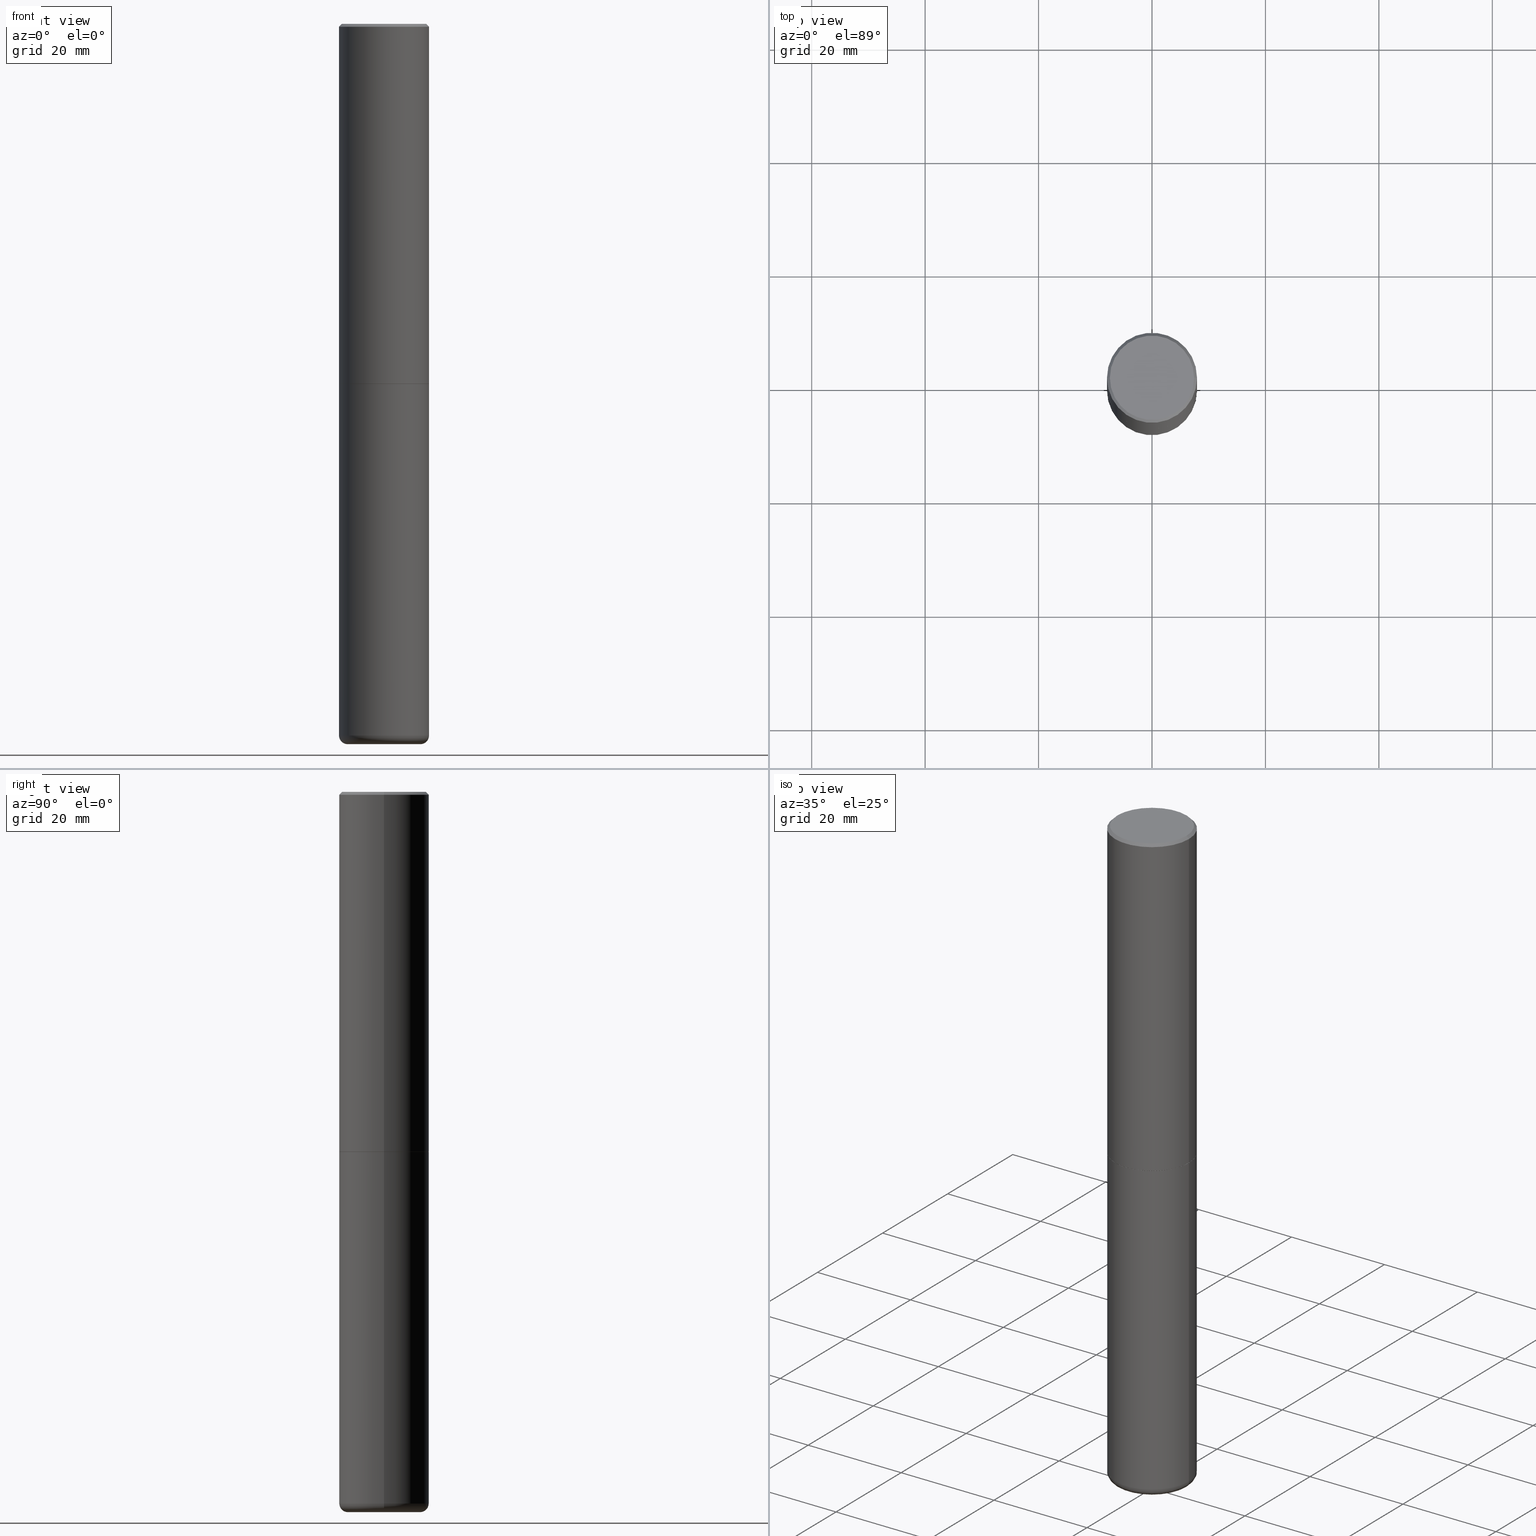
[diagram: canonical four-view strip — front | top / right | iso, engineering-drawing reading convention]
A machine part, canonical four-view strip (front | top / right | iso — engineering-drawing reading convention). The complete STEP part file that produces these views, byte-faithful:
ISO-10303-21;
HEADER;
FILE_DESCRIPTION (( 'STEP AP203' ),
    '1' );
FILE_NAME ('32687.STEP',
    '2022-04-26T19:41:17',
    ( '' ),
    ( '' ),
    'SwSTEP 2.0',
    'SolidWorks 2022',
    '' );
FILE_SCHEMA (( 'CONFIG_CONTROL_DESIGN' ));
ENDSEC;

DATA;
#1 = ADVANCED_FACE ( 'NONE', ( #19 ), #366, .T. ) ;
#2 = VECTOR ( 'NONE', #201, 39.37007874015748143 ) ;
#3 = VECTOR ( 'NONE', #187, 39.37007874015748143 ) ;
#4 = LINE ( 'NONE', #140, #78 ) ;
#5 = DIRECTION ( 'NONE',  ( -0.7071067811866199593, 7.493145998870616062E-15, 0.7071067811864750752 ) ) ;
#6 = VERTEX_POINT ( 'NONE', #79 ) ;
#7 = ADVANCED_FACE ( 'NONE', ( #93 ), #108, .T. ) ;
#8 = CARTESIAN_POINT ( 'NONE',  ( 0.000000000000000000, 0.000000000000000000, 0.000000000000000000 ) ) ;
#9 = ORIENTED_EDGE ( 'NONE', *, *, #248, .F. ) ;
#10 = LINE ( 'NONE', #184, #46 ) ;
#11 = ORIENTED_EDGE ( 'NONE', *, *, #292, .F. ) ;
#12 = CLOSED_SHELL ( 'NONE', ( #441, #128, #7, #200, #369, #60, #111, #414 ) ) ;
#13 = APPROVAL_PERSON_ORGANIZATION ( #440, #276, #285 ) ;
#14 = ORIENTED_EDGE ( 'NONE', *, *, #347, .T. ) ;
#15 = ADVANCED_BREP_SHAPE_REPRESENTATION ( '32687', ( #23, #176, #379 ), #430 ) ;
#16 =( NAMED_UNIT ( * ) PLANE_ANGLE_UNIT ( ) SI_UNIT ( $, .RADIAN. ) );
#17 = VERTEX_POINT ( 'NONE', #59 ) ;
#18 = DIRECTION ( 'NONE',  ( -2.445468806185136597E-29, 3.491481338843145583E-15, 1.000000000000000000 ) ) ;
#19 = FACE_OUTER_BOUND ( 'NONE', #386, .T. ) ;
#20 = CARTESIAN_POINT ( 'NONE',  ( 1.084948876691022629E-27, -1.549019454668422527E-13, -44.36568047594573727 ) ) ;
#21 = ORGANIZATION ( 'UNSPECIFIED', 'UNSPECIFIED', '' ) ;
#22 = CARTESIAN_POINT ( 'NONE',  ( 6.111226546656659252E-29, -8.725211865769023513E-15, -2.499000000000000998 ) ) ;
#23 = MANIFOLD_SOLID_BREP ( 'Body-Move/Copy2[1]', #125 ) ;
#24 = CARTESIAN_POINT ( 'NONE',  ( -1.043851414335219820E-46, 1.490343170380447200E-32, 4.268512490100411279E-18 ) ) ;
#25 = APPLICATION_PROTOCOL_DEFINITION ( 'international standard', 'config_control_design', 1994, #236 ) ;
#26 = ORIENTED_EDGE ( 'NONE', *, *, #382, .F. ) ;
#27 = CARTESIAN_POINT ( 'NONE',  ( 1.208061590255457595E-28, -1.724791781388513999E-14, -4.940000000000000391 ) ) ;
#28 = EDGE_CURVE ( 'NONE', #259, #157, #164, .T. ) ;
#29 = AXIS2_PLACEMENT_3D ( 'NONE', #329, #58, #95 ) ;
#30 = CARTESIAN_POINT ( 'NONE',  ( 6.113672015462842613E-29, -8.728703347107866520E-15, -2.500000000000000444 ) ) ;
#31 = AXIS2_PLACEMENT_3D ( 'NONE', #418, #356, #225 ) ;
#32 = ADVANCED_FACE ( 'NONE', ( #431 ), #373, .F. ) ;
#33 = DIMENSIONAL_EXPONENTS ( 1.000000000000000000, 0.000000000000000000, 0.000000000000000000, 0.000000000000000000, 0.000000000000000000, 0.000000000000000000, 0.000000000000000000 ) ;
#34 = PERSON_AND_ORGANIZATION ( #331, #21 ) ;
#35 = CARTESIAN_POINT ( 'NONE',  ( 0.000000000000000000, 0.000000000000000000, 0.000000000000000000 ) ) ;
#36 = DESIGN_CONTEXT ( 'detailed design', #174, 'design' ) ;
#37 = VECTOR ( 'NONE', #413, 39.37007874015748143 ) ;
#38 = FACE_OUTER_BOUND ( 'NONE', #417, .T. ) ;
#39 = ORIENTED_EDGE ( 'NONE', *, *, #67, .T. ) ;
#40 = DIRECTION ( 'NONE',  ( -2.445468806185136877E-29, 3.491481338843145188E-15, 1.000000000000000000 ) ) ;
#41 = CC_DESIGN_DATE_AND_TIME_ASSIGNMENT ( #243, #371, ( #105 ) ) ;
#42 = ORIENTED_EDGE ( 'NONE', *, *, #28, .F. ) ;
#43 = DIRECTION ( 'NONE',  ( -2.445468806185136597E-29, 3.491481338843145583E-15, 1.000000000000000000 ) ) ;
#44 = EDGE_CURVE ( 'NONE', #424, #6, #412, .T. ) ;
#45 = ORIENTED_EDGE ( 'NONE', *, *, #156, .F. ) ;
#46 = VECTOR ( 'NONE', #75, 39.37007874015748854 ) ;
#47 = APPROVAL ( #138, 'UNSPECIFIED' ) ;
#48 = CARTESIAN_POINT ( 'NONE',  ( 2.042516583223230567E-15, 0.2924999999999997047, -1.019124035366569015E-15 ) ) ;
#49 = EDGE_LOOP ( 'NONE', ( #190, #14, #340, #256 ) ) ;
#50 = DIRECTION ( 'NONE',  ( 2.438088387897960049E-29, -3.491481338843145188E-15, -1.000000000000000000 ) ) ;
#51 = CARTESIAN_POINT ( 'NONE',  ( -0.3125000000000000000, -1.076786453124619412E-14, -2.500000000000000000 ) ) ;
#52 = AXIS2_PLACEMENT_3D ( 'NONE', #210, #68, #342 ) ;
#53 = DIRECTION ( 'NONE',  ( 1.000000000000000000, -6.982962677686269077E-15, 0.000000000000000000 ) ) ;
#54 = VERTEX_POINT ( 'NONE', #51 ) ;
#55 = DIRECTION ( 'NONE',  ( 1.000000000000000000, -6.982962677686266711E-15, 4.876067333457694521E-29 ) ) ;
#56 = DIRECTION ( 'NONE',  ( -2.445468806185136597E-29, 3.491481338843145583E-15, 1.000000000000000000 ) ) ;
#57 = DIRECTION ( 'NONE',  ( 2.445468806185136597E-29, -3.491481338843145583E-15, -1.000000000000000000 ) ) ;
#58 = DIRECTION ( 'NONE',  ( -2.445468806185136597E-29, 3.491481338843145583E-15, 1.000000000000000000 ) ) ;
#59 = CARTESIAN_POINT ( 'NONE',  ( 0.3125000000000000000, -1.091087918388482329E-14, -2.500000000000000000 ) ) ;
#60 = ADVANCED_FACE ( 'NONE', ( #433 ), #204, .T. ) ;
#61 = DIRECTION ( 'NONE',  ( -2.445468806185136597E-29, 3.491481338843145583E-15, 1.000000000000000000 ) ) ;
#62 = CONICAL_SURFACE ( 'NONE', #116, 0.3124999999999997224, 0.7853981633974471688 ) ;
#63 = PERSON_AND_ORGANIZATION_ROLE ( 'creator' ) ;
#64 = AXIS2_PLACEMENT_3D ( 'NONE', #202, #56, #53 ) ;
#65 = ORIENTED_EDGE ( 'NONE', *, *, #196, .T. ) ;
#66 = CARTESIAN_POINT ( 'NONE',  ( 4.890937612370290675E-31, -6.982962677686316261E-17, -0.02000000000000007327 ) ) ;
#67 = EDGE_CURVE ( 'NONE', #394, #73, #320, .T. ) ;
#68 = DIRECTION ( 'NONE',  ( -2.445468806185136597E-29, 3.491481338843145583E-15, 1.000000000000000000 ) ) ;
#69 = DIRECTION ( 'NONE',  ( 1.000000000000000000, -6.982962677686269077E-15, 0.000000000000000000 ) ) ;
#70 = APPROVAL_DATE_TIME ( #315, #276 ) ;
#71 = CIRCLE ( 'NONE', #31, 0.3124999999999994449 ) ;
#72 = APPROVAL ( #162, 'UNSPECIFIED' ) ;
#73 = VERTEX_POINT ( 'NONE', #435 ) ;
#74 = EDGE_CURVE ( 'NONE', #197, #394, #406, .T. ) ;
#75 = DIRECTION ( 'NONE',  ( 0.9998476951563914916, -6.920387862090549257E-15, -0.01745240643727338434 ) ) ;
#76 = ADVANCED_FACE ( 'NONE', ( #161 ), #387, .T. ) ;
#77 = AXIS2_PLACEMENT_3D ( 'NONE', #22, #167, #309 ) ;
#78 = VECTOR ( 'NONE', #5, 39.37007874015748143 ) ;
#79 = CARTESIAN_POINT ( 'NONE',  ( -0.3125000000000000000, -2.177074697022629142E-15, -2.499000000000000998 ) ) ;
#80 = DIRECTION ( 'NONE',  ( 0.000000000000000000, 0.000000000000000000, 1.000000000000000000 ) ) ;
#81 = ORIENTED_EDGE ( 'NONE', *, *, #410, .T. ) ;
#82 = AXIS2_PLACEMENT_3D ( 'NONE', #368, #57, #244 ) ;
#83 = AXIS2_PLACEMENT_3D ( 'NONE', #284, #103, #180 ) ;
#84 = CARTESIAN_POINT ( 'NONE',  ( -0.3124999999999997224, 2.112346210000093471E-15, -0.02000000000000007327 ) ) ;
#85 = PERSON_AND_ORGANIZATION ( #331, #21 ) ;
#86 = ORIENTED_EDGE ( 'NONE', *, *, #410, .F. ) ;
#87 = DIRECTION ( 'NONE',  ( -2.445468806185136597E-29, 3.491481338843145583E-15, 1.000000000000000000 ) ) ;
#88 =( CONVERSION_BASED_UNIT ( 'INCH', #376 ) LENGTH_UNIT ( ) NAMED_UNIT ( #33 ) );
#89 = ADVANCED_FACE ( 'NONE', ( #123 ), #396, .F. ) ;
#90 = ORIENTED_EDGE ( 'NONE', *, *, #307, .T. ) ;
#91 = CARTESIAN_POINT ( 'NONE',  ( 1.208061590255457595E-28, -1.724791781388513999E-14, -4.940000000000000391 ) ) ;
#92 = CALENDAR_DATE ( 2022, 26, 4 ) ;
#93 = FACE_OUTER_BOUND ( 'NONE', #114, .T. ) ;
#94 = EDGE_CURVE ( 'NONE', #6, #424, #220, .T. ) ;
#95 = DIRECTION ( 'NONE',  ( 1.000000000000000000, -6.982962677686266711E-15, 4.876176775795935232E-29 ) ) ;
#96 = AXIS2_PLACEMENT_3D ( 'NONE', #328, #392, #124 ) ;
#97 = COORDINATED_UNIVERSAL_TIME_OFFSET ( 5, 0, .BEHIND. ) ;
#98 = AXIS2_PLACEMENT_3D ( 'NONE', #8, #293, #223 ) ;
#99 = LINE ( 'NONE', #265, #282 ) ;
#100 = PERSON_AND_ORGANIZATION_ROLE ( 'classification_officer' ) ;
#101 = AXIS2_PLACEMENT_3D ( 'NONE', #336, #263, #130 ) ;
#102 = LINE ( 'NONE', #381, #3 ) ;
#103 = DIRECTION ( 'NONE',  ( -2.445468806185136597E-29, 3.491481338843145583E-15, 1.000000000000000000 ) ) ;
#104 = ORIENTED_EDGE ( 'NONE', *, *, #393, .T. ) ;
#105 = PRODUCT_DEFINITION ( 'UNKNOWN', '', #181, #36 ) ;
#106 = CARTESIAN_POINT ( 'NONE',  ( 6.113672015462842613E-29, -8.728703347107864943E-15, -2.500000000000000000 ) ) ;
#107 = CIRCLE ( 'NONE', #360, 0.3124999999999997224 ) ;
#108 = CONICAL_SURFACE ( 'NONE', #82, 0.3124999999999997224, 0.7853981633974471688 ) ;
#109 = ORIENTED_EDGE ( 'NONE', *, *, #333, .F. ) ;
#110 = CIRCLE ( 'NONE', #213, 0.3125000000000000000 ) ;
#111 = ADVANCED_FACE ( 'NONE', ( #134 ), #299, .F. ) ;
#112 = EDGE_LOOP ( 'NONE', ( #294, #301, #188, #427 ) ) ;
#113 = FACE_OUTER_BOUND ( 'NONE', #150, .T. ) ;
#114 = EDGE_LOOP ( 'NONE', ( #11, #425, #104, #26 ) ) ;
#115 = VERTEX_POINT ( 'NONE', #395 ) ;
#116 = AXIS2_PLACEMENT_3D ( 'NONE', #338, #375, #237 ) ;
#117 = CONICAL_SURFACE ( 'NONE', #149, 2255.510300424909019, 1.553343034274963452 ) ;
#118 = PLANE ( 'NONE',  #194 ) ;
#119 = CARTESIAN_POINT ( 'NONE',  ( 0.2525000000000000022, -1.901111589000092328E-14, -4.940000000000000391 ) ) ;
#120 = FACE_OUTER_BOUND ( 'NONE', #151, .T. ) ;
#121 = ORIENTED_EDGE ( 'NONE', *, *, #292, .T. ) ;
#122 = EDGE_CURVE ( 'NONE', #199, #115, #107, .T. ) ;
#123 = FACE_OUTER_BOUND ( 'NONE', #391, .T. ) ;
#124 = DIRECTION ( 'NONE',  ( 1.000000000000000000, -6.982962677686266711E-15, 4.876176775795936353E-29 ) ) ;
#125 = CLOSED_SHELL ( 'NONE', ( #420, #310, #89, #318, #76, #1, #32 ) ) ;
#126 = AXIS2_PLACEMENT_3D ( 'NONE', #325, #153, #295 ) ;
#127 = DIRECTION ( 'NONE',  ( 0.7071067811866199593, -2.468850131083015945E-15, 0.7071067811864750752 ) ) ;
#128 = ADVANCED_FACE ( 'NONE', ( #404 ), #242, .T. ) ;
#129 = CALENDAR_DATE ( 2022, 26, 4 ) ;
#130 = DIRECTION ( 'NONE',  ( -1.000000000000000000, 6.982962677686265922E-15, -4.876176775795935793E-29 ) ) ;
#131 = LINE ( 'NONE', #168, #260 ) ;
#132 = CC_DESIGN_PERSON_AND_ORGANIZATION_ASSIGNMENT ( #361, #383, ( #181 ) ) ;
#133 = CARTESIAN_POINT ( 'NONE',  ( 6.113672015462842613E-29, -8.728703347107866520E-15, -2.500000000000000444 ) ) ;
#134 = FACE_OUTER_BOUND ( 'NONE', #298, .T. ) ;
#135 = PERSON_AND_ORGANIZATION ( #331, #21 ) ;
#136 = DIRECTION ( 'NONE',  ( 7.105427357601001859E-15, 1.000000000000000000, -3.491481338843145583E-15 ) ) ;
#137 = CARTESIAN_POINT ( 'NONE',  ( 1.222732168352103738E-28, -1.745737478804456827E-14, -4.999990861709382450 ) ) ;
#138 = APPROVAL_STATUS ( 'not_yet_approved' ) ;
#139 = COORDINATED_UNIVERSAL_TIME_OFFSET ( 5, 0, .BEHIND. ) ;
#140 = CARTESIAN_POINT ( 'NONE',  ( -0.3114999999999999991, -6.515362725215153659E-15, -2.500000000000000444 ) ) ;
#141 = PRODUCT_DEFINITION_SHAPE ( 'NONE', 'NONE',  #105 ) ;
#142 = EDGE_CURVE ( 'NONE', #419, #115, #334, .T. ) ;
#143 = AXIS2_PLACEMENT_3D ( 'NONE', #91, #278, #312 ) ;
#144 = CARTESIAN_POINT ( 'NONE',  ( 0.2514528556137621829, -1.918246660051672056E-14, -4.999990861709382450 ) ) ;
#145 = AXIS2_PLACEMENT_3D ( 'NONE', #35, #281, #411 ) ;
#146 = CC_DESIGN_PERSON_AND_ORGANIZATION_ASSIGNMENT ( #219, #100, ( #407 ) ) ;
#147 = ORIENTED_EDGE ( 'NONE', *, *, #217, .F. ) ;
#148 = AXIS2_PLACEMENT_3D ( 'NONE', #20, #273, #158 ) ;
#149 = AXIS2_PLACEMENT_3D ( 'NONE', #378, #177, #416 ) ;
#150 = EDGE_LOOP ( 'NONE', ( #207, #121 ) ) ;
#151 = EDGE_LOOP ( 'NONE', ( #152, #183, #291, #186 ) ) ;
#152 = ORIENTED_EDGE ( 'NONE', *, *, #175, .T. ) ;
#153 = DIRECTION ( 'NONE',  ( -2.445468806185136597E-29, 3.491481338843145583E-15, 1.000000000000000000 ) ) ;
#154 = EDGE_LOOP ( 'NONE', ( #398, #163, #357, #86 ) ) ;
#155 = AXIS2_PLACEMENT_3D ( 'NONE', #290, #43, #322 ) ;
#156 = EDGE_CURVE ( 'NONE', #73, #54, #99, .T. ) ;
#157 = VERTEX_POINT ( 'NONE', #436 ) ;
#158 = DIRECTION ( 'NONE',  ( -1.000000000000000000, 6.982962677686266711E-15, 0.000000000000000000 ) ) ;
#159 = EDGE_LOOP ( 'NONE', ( #65, #224 ) ) ;
#160 = EDGE_CURVE ( 'NONE', #400, #424, #370, .T. ) ;
#161 = FACE_OUTER_BOUND ( 'NONE', #154, .T. ) ;
#162 = APPROVAL_STATUS ( 'not_yet_approved' ) ;
#163 = ORIENTED_EDGE ( 'NONE', *, *, #248, .T. ) ;
#164 = CIRCLE ( 'NONE', #179, 0.05999999999999946348 ) ;
#165 = TOROIDAL_SURFACE ( 'NONE', #83, 0.2525000000000000022, 0.05999999999999949818 ) ;
#166 = CARTESIAN_POINT ( 'NONE',  ( 0.3124999999999997224, -2.213735251080464939E-15, -0.02000000000000007327 ) ) ;
#167 = DIRECTION ( 'NONE',  ( -2.445468806185136597E-29, 3.491481338843145583E-15, 1.000000000000000000 ) ) ;
#168 = CARTESIAN_POINT ( 'NONE',  ( -0.3124999999999998890, 2.220446049250312292E-15, -1.537167215704657391E-29 ) ) ;
#169 = CARTESIAN_POINT ( 'NONE',  ( 1.221658821299451563E-28, -1.744205023679714214E-14, -4.995601735788261166 ) ) ;
#170 = DIRECTION ( 'NONE',  ( -0.9998476951563914916, 6.920964387254070988E-15, -0.01745240643727338434 ) ) ;
#171 = APPLICATION_PROTOCOL_DEFINITION ( 'international standard', 'config_control_design', 1994, #174 ) ;
#172 = VECTOR ( 'NONE', #127, 39.37007874015748143 ) ;
#173 = DIRECTION ( 'NONE',  ( -2.445468806185136597E-29, 3.491481338843145583E-15, 1.000000000000000000 ) ) ;
#174 = APPLICATION_CONTEXT ( 'configuration controlled 3d designs of mechanical parts and assemblies' ) ;
#175 = EDGE_CURVE ( 'NONE', #157, #73, #335, .T. ) ;
#176 = MANIFOLD_SOLID_BREP ( 'Body-Move/Copy2[2]', #12 ) ;
#177 = DIRECTION ( 'NONE',  ( 2.445468806185136597E-29, -3.491481338843145583E-15, -1.000000000000000000 ) ) ;
#178 = PERSON_AND_ORGANIZATION_ROLE ( 'design_supplier' ) ;
#179 = AXIS2_PLACEMENT_3D ( 'NONE', #119, #267, #359 ) ;
#180 = DIRECTION ( 'NONE',  ( 1.000000000000000000, -6.982962677686268288E-15, 4.883557194083113462E-29 ) ) ;
#181 = PRODUCT_DEFINITION_FORMATION_WITH_SPECIFIED_SOURCE ( 'ANY', '', #279, .NOT_KNOWN. ) ;
#182 = CARTESIAN_POINT ( 'NONE',  ( -1.043851414335219820E-46, 1.490343170380447200E-32, 4.268512490100411279E-18 ) ) ;
#183 = ORIENTED_EDGE ( 'NONE', *, *, #156, .T. ) ;
#184 = CARTESIAN_POINT ( 'NONE',  ( 1.221658821299451563E-28, -1.744205023679714214E-14, -4.995601735788261166 ) ) ;
#185 = AXIS2_PLACEMENT_3D ( 'NONE', #311, #136, #275 ) ;
#186 = ORIENTED_EDGE ( 'NONE', *, *, #307, .F. ) ;
#187 = DIRECTION ( 'NONE',  ( -0.7071067811865466846, 2.468850131082247989E-15, -0.7071067811865483499 ) ) ;
#188 = ORIENTED_EDGE ( 'NONE', *, *, #215, .T. ) ;
#189 = CARTESIAN_POINT ( 'NONE',  ( 0.3125000000000000000, -1.090738770254598186E-14, -2.499000000000000998 ) ) ;
#190 = ORIENTED_EDGE ( 'NONE', *, *, #287, .F. ) ;
#191 = PRODUCT_RELATED_PRODUCT_CATEGORY ( 'detail', '', ( #279 ) ) ;
#192 = DIRECTION ( 'NONE',  ( -2.445468806185136597E-29, 3.491481338843145583E-15, 1.000000000000000000 ) ) ;
#193 = AXIS2_PLACEMENT_3D ( 'NONE', #27, #401, #434 ) ;
#194 = AXIS2_PLACEMENT_3D ( 'NONE', #48, #50, #258 ) ;
#195 =( LENGTH_UNIT ( ) NAMED_UNIT ( * ) SI_UNIT ( $, .METRE. ) );
#196 = EDGE_CURVE ( 'NONE', #17, #54, #390, .T. ) ;
#197 = VERTEX_POINT ( 'NONE', #367 ) ;
#198 = DIRECTION ( 'NONE',  ( -2.445468806185136597E-29, 3.491481338843145583E-15, 1.000000000000000000 ) ) ;
#199 = VERTEX_POINT ( 'NONE', #84 ) ;
#200 = ADVANCED_FACE ( 'NONE', ( #205 ), #62, .T. ) ;
#201 = DIRECTION ( 'NONE',  ( 0.7071067811865466846, -7.319954787623252890E-15, -0.7071067811865483499 ) ) ;
#202 = CARTESIAN_POINT ( 'NONE',  ( 6.113672015462842613E-29, -8.728703347107866520E-15, -2.500000000000000444 ) ) ;
#203 = ORIENTED_EDGE ( 'NONE', *, *, #384, .T. ) ;
#204 = CONICAL_SURFACE ( 'NONE', #421, 0.3114999999999999991, 0.7853981633975507526 ) ;
#205 = FACE_OUTER_BOUND ( 'NONE', #332, .T. ) ;
#206 = APPROVAL_ROLE ( '' ) ;
#207 = ORIENTED_EDGE ( 'NONE', *, *, #231, .T. ) ;
#208 = LINE ( 'NONE', #268, #372 ) ;
#209 = CALENDAR_DATE ( 2022, 26, 4 ) ;
#210 = CARTESIAN_POINT ( 'NONE',  ( 6.113672015462842613E-29, -8.728703347107866520E-15, -2.500000000000000444 ) ) ;
#211 = DIRECTION ( 'NONE',  ( 1.000000000000000000, -6.982962677686265133E-15, 0.000000000000000000 ) ) ;
#212 = AXIS2_PLACEMENT_3D ( 'NONE', #240, #61, #408 ) ;
#213 = AXIS2_PLACEMENT_3D ( 'NONE', #106, #254, #211 ) ;
#214 = CARTESIAN_POINT ( 'NONE',  ( -0.3114999999999999991, -6.510064270866932046E-15, -2.500000000000000444 ) ) ;
#215 = EDGE_CURVE ( 'NONE', #424, #115, #208, .T. ) ;
#216 = UNCERTAINTY_MEASURE_WITH_UNIT (LENGTH_MEASURE( 1.000000000000000082E-05 ), #88, 'distance_accuracy_value', 'NONE');
#217 = EDGE_CURVE ( 'NONE', #400, #350, #266, .T. ) ;
#218 = APPROVAL_STATUS ( 'not_yet_approved' ) ;
#219 = PERSON_AND_ORGANIZATION ( #331, #21 ) ;
#220 = CIRCLE ( 'NONE', #227, 0.3125000000000000000 ) ;
#221 = LOCAL_TIME ( 15, 41, 17.00000000000000000, #139 ) ;
#222 = ORIENTED_EDGE ( 'NONE', *, *, #287, .T. ) ;
#223 = DIRECTION ( 'NONE',  ( 1.000000000000000000, -6.982962677686266711E-15, 4.876176775795936353E-29 ) ) ;
#224 = ORIENTED_EDGE ( 'NONE', *, *, #333, .T. ) ;
#225 = DIRECTION ( 'NONE',  ( 1.000000000000000000, -6.982962677686269077E-15, 0.000000000000000000 ) ) ;
#226 = CYLINDRICAL_SURFACE ( 'NONE', #98, 0.3124999999999997224 ) ;
#227 = AXIS2_PLACEMENT_3D ( 'NONE', #341, #87, #399 ) ;
#228 = CIRCLE ( 'NONE', #126, 0.2514528556137634596 ) ;
#229 = VERTEX_POINT ( 'NONE', #306 ) ;
#230 = ORIENTED_EDGE ( 'NONE', *, *, #429, .F. ) ;
#231 = EDGE_CURVE ( 'NONE', #229, #419, #354, .T. ) ;
#232 = ORIENTED_EDGE ( 'NONE', *, *, #393, .F. ) ;
#233 = DATE_AND_TIME ( #92, #305 ) ;
#234 = EDGE_LOOP ( 'NONE', ( #297, #286, #232, #262 ) ) ;
#235 = CIRCLE ( 'NONE', #388, 0.2514528556137634596 ) ;
#236 = APPLICATION_CONTEXT ( 'configuration controlled 3d designs of mechanical parts and assemblies' ) ;
#237 = DIRECTION ( 'NONE',  ( -1.000000000000000000, 6.982962677686266711E-15, 0.000000000000000000 ) ) ;
#238 = APPROVAL_ROLE ( '' ) ;
#239 = ORIENTED_EDGE ( 'NONE', *, *, #384, .F. ) ;
#240 = CARTESIAN_POINT ( 'NONE',  ( 6.113672015462842613E-29, -8.728703347107864943E-15, -2.500000000000000000 ) ) ;
#241 = EDGE_LOOP ( 'NONE', ( #326, #222, #272, #355 ) ) ;
#242 = CYLINDRICAL_SURFACE ( 'NONE', #29, 0.3124999999999998890 ) ;
#243 = DATE_AND_TIME ( #129, #374 ) ;
#244 = DIRECTION ( 'NONE',  ( -1.000000000000000000, 6.982962677686266711E-15, 0.000000000000000000 ) ) ;
#245 = CIRCLE ( 'NONE', #362, 0.2924999999999997047 ) ;
#246 = CARTESIAN_POINT ( 'NONE',  ( 6.113672015462842613E-29, -8.728703347107864943E-15, -2.500000000000000000 ) ) ;
#247 = DIRECTION ( 'NONE',  ( -2.445468806185136877E-29, 3.491481338843145188E-15, 1.000000000000000000 ) ) ;
#248 = EDGE_CURVE ( 'NONE', #394, #259, #235, .T. ) ;
#249 = CARTESIAN_POINT ( 'NONE',  ( 0.3124999999999997224, -2.182175836776956375E-15, 1.523805242436228674E-29 ) ) ;
#250 = APPROVAL_PERSON_ORGANIZATION ( #135, #72, #238 ) ;
#251 = CYLINDRICAL_SURFACE ( 'NONE', #145, 0.3124999999999998890 ) ;
#252 = DATE_AND_TIME ( #280, #221 ) ;
#253 = ORIENTED_EDGE ( 'NONE', *, *, #347, .F. ) ;
#254 = DIRECTION ( 'NONE',  ( -2.445468806185136597E-29, 3.491481338843145583E-15, 1.000000000000000000 ) ) ;
#255 = CC_DESIGN_SECURITY_CLASSIFICATION ( #407, ( #181 ) ) ;
#256 = ORIENTED_EDGE ( 'NONE', *, *, #94, .F. ) ;
#257 = EDGE_CURVE ( 'NONE', #6, #199, #131, .T. ) ;
#258 = DIRECTION ( 'NONE',  ( -1.000000000000000000, 6.982962677686265922E-15, -4.876176775795935793E-29 ) ) ;
#259 = VERTEX_POINT ( 'NONE', #144 ) ;
#260 = VECTOR ( 'NONE', #40, 39.37007874015748143 ) ;
#261 = CC_DESIGN_PERSON_AND_ORGANIZATION_ASSIGNMENT ( #34, #178, ( #181 ) ) ;
#262 = ORIENTED_EDGE ( 'NONE', *, *, #215, .F. ) ;
#263 = DIRECTION ( 'NONE',  ( 2.438088387897960049E-29, -3.491481338843145188E-15, -1.000000000000000000 ) ) ;
#264 = ORIENTED_EDGE ( 'NONE', *, *, #231, .F. ) ;
#265 = CARTESIAN_POINT ( 'NONE',  ( -0.3124999999999997224, 2.220446049250311109E-15, -1.537167215704656831E-29 ) ) ;
#266 = CIRCLE ( 'NONE', #52, 0.3114999999999999991 ) ;
#267 = DIRECTION ( 'NONE',  ( -6.982962677686266711E-15, -1.000000000000000000, 3.491481338843145583E-15 ) ) ;
#268 = CARTESIAN_POINT ( 'NONE',  ( 0.3124999999999998890, -2.182175836776957558E-15, 1.523805242436229235E-29 ) ) ;
#269 = ORIENTED_EDGE ( 'NONE', *, *, #74, .F. ) ;
#270 = CARTESIAN_POINT ( 'NONE',  ( 0.3114999999999999991, -1.090389622120713885E-14, -2.500000000000000444 ) ) ;
#271 = MECHANICAL_CONTEXT ( 'NONE', #236, 'mechanical' ) ;
#272 = ORIENTED_EDGE ( 'NONE', *, *, #44, .F. ) ;
#273 = DIRECTION ( 'NONE',  ( 2.445468806185136597E-29, -3.491481338843145583E-15, -1.000000000000000000 ) ) ;
#274 = APPROVAL_DATE_TIME ( #233, #72 ) ;
#275 = DIRECTION ( 'NONE',  ( -1.000000000000000000, 7.105427357601022369E-15, 0.000000000000000000 ) ) ;
#276 = APPROVAL ( #218, 'UNSPECIFIED' ) ;
#277 = LOCAL_TIME ( 15, 41, 17.00000000000000000, #348 ) ;
#278 = DIRECTION ( 'NONE',  ( -2.445468806185136597E-29, 3.491481338843145583E-15, 1.000000000000000000 ) ) ;
#279 = PRODUCT ( '32687', '32687', '', ( #271 ) ) ;
#280 = CALENDAR_DATE ( 2022, 26, 4 ) ;
#281 = DIRECTION ( 'NONE',  ( -2.445468806185136597E-29, 3.491481338843145583E-15, 1.000000000000000000 ) ) ;
#282 = VECTOR ( 'NONE', #247, 39.37007874015748143 ) ;
#283 = CIRCLE ( 'NONE', #288, 0.3114999999999999991 ) ;
#284 = CARTESIAN_POINT ( 'NONE',  ( 1.208061590255457595E-28, -1.724791781388513999E-14, -4.940000000000000391 ) ) ;
#285 = APPROVAL_ROLE ( '' ) ;
#286 = ORIENTED_EDGE ( 'NONE', *, *, #257, .T. ) ;
#287 = EDGE_CURVE ( 'NONE', #350, #6, #4, .T. ) ;
#288 = AXIS2_PLACEMENT_3D ( 'NONE', #30, #173, #69 ) ;
#289 = ORIENTED_EDGE ( 'NONE', *, *, #142, .F. ) ;
#290 = CARTESIAN_POINT ( 'NONE',  ( 4.890937612370290675E-31, -6.982962677686316261E-17, -0.02000000000000007327 ) ) ;
#291 = ORIENTED_EDGE ( 'NONE', *, *, #196, .F. ) ;
#292 = EDGE_CURVE ( 'NONE', #419, #229, #245, .T. ) ;
#293 = DIRECTION ( 'NONE',  ( -2.445468806185136597E-29, 3.491481338843145583E-15, 1.000000000000000000 ) ) ;
#294 = ORIENTED_EDGE ( 'NONE', *, *, #257, .F. ) ;
#295 = DIRECTION ( 'NONE',  ( 1.000000000000000000, -6.982962677686267499E-15, 0.000000000000000000 ) ) ;
#296 = CIRCLE ( 'NONE', #155, 0.3124999999999997224 ) ;
#297 = ORIENTED_EDGE ( 'NONE', *, *, #44, .T. ) ;
#298 = EDGE_LOOP ( 'NONE', ( #147, #253 ) ) ;
#299 = PLANE ( 'NONE',  #314 ) ;
#300 =( NAMED_UNIT ( * ) SI_UNIT ( $, .STERADIAN. ) SOLID_ANGLE_UNIT ( ) );
#301 = ORIENTED_EDGE ( 'NONE', *, *, #94, .T. ) ;
#302 = DIRECTION ( 'NONE',  ( -2.438088387897960049E-29, 3.491481338843145188E-15, 1.000000000000000000 ) ) ;
#303 = COORDINATED_UNIVERSAL_TIME_OFFSET ( 5, 0, .BEHIND. ) ;
#304 = ORIENTED_EDGE ( 'NONE', *, *, #382, .T. ) ;
#305 = LOCAL_TIME ( 15, 41, 17.00000000000000000, #303 ) ;
#306 = CARTESIAN_POINT ( 'NONE',  ( -0.2924999999999997047, 2.077431396611662216E-15, 4.268512490086005323E-18 ) ) ;
#307 = EDGE_CURVE ( 'NONE', #157, #17, #409, .T. ) ;
#308 = DIRECTION ( 'NONE',  ( 1.000000000000000000, 0.000000000000000000, 0.000000000000000000 ) ) ;
#309 = DIRECTION ( 'NONE',  ( 1.000000000000000000, -6.982962677686265133E-15, 0.000000000000000000 ) ) ;
#310 = ADVANCED_FACE ( 'NONE', ( #346 ), #165, .T. ) ;
#311 = CARTESIAN_POINT ( 'NONE',  ( -0.2525000000000000022, -1.545379740609088740E-14, -4.940000000000000391 ) ) ;
#312 = DIRECTION ( 'NONE',  ( 1.000000000000000000, -6.982962677686269077E-15, 0.000000000000000000 ) ) ;
#313 = DATE_AND_TIME ( #209, #343 ) ;
#314 = AXIS2_PLACEMENT_3D ( 'NONE', #246, #302, #428 ) ;
#315 = DATE_AND_TIME ( #442, #277 ) ;
#316 = DIRECTION ( 'NONE',  ( 1.000000000000000000, -6.982962677686266711E-15, 4.876067333457694521E-29 ) ) ;
#317 = CC_DESIGN_APPROVAL ( #72, ( #105 ) ) ;
#318 = ADVANCED_FACE ( 'NONE', ( #38 ), #117, .F. ) ;
#319 = EDGE_LOOP ( 'NONE', ( #352, #39, #363, #42 ) ) ;
#320 = CIRCLE ( 'NONE', #185, 0.05999999999999946348 ) ;
#321 = AXIS2_PLACEMENT_3D ( 'NONE', #24, #198, #55 ) ;
#322 = DIRECTION ( 'NONE',  ( 1.000000000000000000, -6.982962677686266711E-15, 0.000000000000000000 ) ) ;
#323 = CARTESIAN_POINT ( 'NONE',  ( -0.2514528556137621829, -1.570148888209603387E-14, -4.999990861709382450 ) ) ;
#324 = ORIENTED_EDGE ( 'NONE', *, *, #74, .T. ) ;
#325 = CARTESIAN_POINT ( 'NONE',  ( 1.222732168352103738E-28, -1.745737478804456827E-14, -4.999990861709382450 ) ) ;
#326 = ORIENTED_EDGE ( 'NONE', *, *, #217, .T. ) ;
#327 = DIRECTION ( 'NONE',  ( 1.000000000000000000, -6.982962677686269077E-15, 0.000000000000000000 ) ) ;
#328 = CARTESIAN_POINT ( 'NONE',  ( 0.000000000000000000, 0.000000000000000000, 0.000000000000000000 ) ) ;
#329 = CARTESIAN_POINT ( 'NONE',  ( 0.000000000000000000, 0.000000000000000000, 0.000000000000000000 ) ) ;
#330 = CARTESIAN_POINT ( 'NONE',  ( 0.000000000000000000, 0.000000000000000000, 0.000000000000000000 ) ) ;
#331 = PERSON ( 'UNSPECIFIED', 'UNSPECIFIED', 'UNSPECIFIED', ('UNSPECIFIED'), ('UNSPECIFIED'), ('UNSPECIFIED') ) ;
#332 = EDGE_LOOP ( 'NONE', ( #289, #264, #304, #403 ) ) ;
#333 = EDGE_CURVE ( 'NONE', #54, #17, #110, .T. ) ;
#334 = LINE ( 'NONE', #166, #2 ) ;
#335 = CIRCLE ( 'NONE', #143, 0.3124999999999994449 ) ;
#336 = CARTESIAN_POINT ( 'NONE',  ( 2.182175836777019089E-15, 0.3124999999999912847, -2.500000000000001332 ) ) ;
#337 = CONICAL_SURFACE ( 'NONE', #64, 0.3114999999999999991, 0.7853981633975507526 ) ;
#338 = CARTESIAN_POINT ( 'NONE',  ( 4.890937612370290675E-31, -6.982962677686316261E-17, -0.02000000000000007327 ) ) ;
#339 = CC_DESIGN_PERSON_AND_ORGANIZATION_ASSIGNMENT ( #402, #365, ( #279 ) ) ;
#340 = ORIENTED_EDGE ( 'NONE', *, *, #160, .T. ) ;
#341 = CARTESIAN_POINT ( 'NONE',  ( 6.111226546656659252E-29, -8.725211865769023513E-15, -2.499000000000000998 ) ) ;
#342 = DIRECTION ( 'NONE',  ( 1.000000000000000000, -6.982962677686269077E-15, 0.000000000000000000 ) ) ;
#343 = LOCAL_TIME ( 15, 41, 17.00000000000000000, #97 ) ;
#344 = FACE_OUTER_BOUND ( 'NONE', #112, .T. ) ;
#345 = DATE_TIME_ROLE ( 'classification_date' ) ;
#346 = FACE_OUTER_BOUND ( 'NONE', #319, .T. ) ;
#347 = EDGE_CURVE ( 'NONE', #350, #400, #283, .T. ) ;
#348 = COORDINATED_UNIVERSAL_TIME_OFFSET ( 5, 0, .BEHIND. ) ;
#349 = CC_DESIGN_APPROVAL ( #47, ( #181 ) ) ;
#350 = VERTEX_POINT ( 'NONE', #214 ) ;
#351 = CC_DESIGN_DATE_AND_TIME_ASSIGNMENT ( #252, #345, ( #407 ) ) ;
#352 = ORIENTED_EDGE ( 'NONE', *, *, #429, .T. ) ;
#353 = VECTOR ( 'NONE', #170, 39.37007874015748854 ) ;
#354 = CIRCLE ( 'NONE', #321, 0.2924999999999997047 ) ;
#355 = ORIENTED_EDGE ( 'NONE', *, *, #160, .F. ) ;
#356 = DIRECTION ( 'NONE',  ( -2.445468806185136597E-29, 3.491481338843145583E-15, 1.000000000000000000 ) ) ;
#357 = ORIENTED_EDGE ( 'NONE', *, *, #28, .T. ) ;
#358 = FACE_OUTER_BOUND ( 'NONE', #241, .T. ) ;
#359 = DIRECTION ( 'NONE',  ( 1.000000000000000000, -6.982962677686265922E-15, 0.000000000000000000 ) ) ;
#360 = AXIS2_PLACEMENT_3D ( 'NONE', #66, #377, #426 ) ;
#361 = PERSON_AND_ORGANIZATION ( #331, #21 ) ;
#362 = AXIS2_PLACEMENT_3D ( 'NONE', #182, #415, #316 ) ;
#363 = ORIENTED_EDGE ( 'NONE', *, *, #175, .F. ) ;
#364 = DIRECTION ( 'NONE',  ( -2.445468806185136877E-29, 3.491481338843145188E-15, 1.000000000000000000 ) ) ;
#365 = PERSON_AND_ORGANIZATION_ROLE ( 'design_owner' ) ;
#366 = CYLINDRICAL_SURFACE ( 'NONE', #96, 0.3124999999999997224 ) ;
#367 = CARTESIAN_POINT ( 'NONE',  ( 1.221658821299451563E-28, -1.744205023679714214E-14, -4.995601735788261166 ) ) ;
#368 = CARTESIAN_POINT ( 'NONE',  ( 4.890937612370290675E-31, -6.982962677686316261E-17, -0.02000000000000007327 ) ) ;
#369 = ADVANCED_FACE ( 'NONE', ( #344 ), #251, .T. ) ;
#370 = LINE ( 'NONE', #270, #172 ) ;
#371 = DATE_TIME_ROLE ( 'creation_date' ) ;
#372 = VECTOR ( 'NONE', #364, 39.37007874015748143 ) ;
#373 = PLANE ( 'NONE',  #101 ) ;
#374 = LOCAL_TIME ( 15, 41, 17.00000000000000000, #405 ) ;
#375 = DIRECTION ( 'NONE',  ( 2.445468806185136597E-29, -3.491481338843145583E-15, -1.000000000000000000 ) ) ;
#376 = LENGTH_MEASURE_WITH_UNIT ( LENGTH_MEASURE( 0.02539999999999999897 ), #195 );
#377 = DIRECTION ( 'NONE',  ( -2.445468806185136597E-29, 3.491481338843145583E-15, 1.000000000000000000 ) ) ;
#378 = CARTESIAN_POINT ( 'NONE',  ( 1.084948876691022629E-27, -1.549019454668422527E-13, -44.36568047594573727 ) ) ;
#379 = AXIS2_PLACEMENT_3D ( 'NONE', #330, #80, #308 ) ;
#380 = SECURITY_CLASSIFICATION_LEVEL ( 'unclassified' ) ;
#381 = CARTESIAN_POINT ( 'NONE',  ( -0.3124999999999997224, 2.112346210000093471E-15, -0.02000000000000007327 ) ) ;
#382 = EDGE_CURVE ( 'NONE', #229, #199, #102, .T. ) ;
#383 = PERSON_AND_ORGANIZATION_ROLE ( 'creator' ) ;
#384 = EDGE_CURVE ( 'NONE', #197, #259, #10, .T. ) ;
#385 = SHAPE_DEFINITION_REPRESENTATION ( #141, #15 ) ;
#386 = EDGE_LOOP ( 'NONE', ( #45, #81, #90, #109 ) ) ;
#387 = TOROIDAL_SURFACE ( 'NONE', #193, 0.2525000000000000022, 0.05999999999999949818 ) ;
#388 = AXIS2_PLACEMENT_3D ( 'NONE', #137, #18, #432 ) ;
#389 = CARTESIAN_POINT ( 'NONE',  ( 0.2924999999999997047, -2.110215457714317959E-15, 4.268512490114932791E-18 ) ) ;
#390 = CIRCLE ( 'NONE', #212, 0.3125000000000000000 ) ;
#391 = EDGE_LOOP ( 'NONE', ( #269, #203, #9 ) ) ;
#392 = DIRECTION ( 'NONE',  ( -2.445468806185136597E-29, 3.491481338843145583E-15, 1.000000000000000000 ) ) ;
#393 = EDGE_CURVE ( 'NONE', #115, #199, #296, .T. ) ;
#394 = VERTEX_POINT ( 'NONE', #323 ) ;
#395 = CARTESIAN_POINT ( 'NONE',  ( 0.3124999999999997224, -2.213735251080464939E-15, -0.02000000000000007327 ) ) ;
#396 = CONICAL_SURFACE ( 'NONE', #148, 2255.510300424909019, 1.553343034274963452 ) ;
#397 = PERSON_AND_ORGANIZATION ( #331, #21 ) ;
#398 = ORIENTED_EDGE ( 'NONE', *, *, #67, .F. ) ;
#399 = DIRECTION ( 'NONE',  ( 1.000000000000000000, -6.982962677686265133E-15, 0.000000000000000000 ) ) ;
#400 = VERTEX_POINT ( 'NONE', #423 ) ;
#401 = DIRECTION ( 'NONE',  ( -2.445468806185136597E-29, 3.491481338843145583E-15, 1.000000000000000000 ) ) ;
#402 = PERSON_AND_ORGANIZATION ( #331, #21 ) ;
#403 = ORIENTED_EDGE ( 'NONE', *, *, #122, .T. ) ;
#404 = FACE_OUTER_BOUND ( 'NONE', #234, .T. ) ;
#405 = COORDINATED_UNIVERSAL_TIME_OFFSET ( 5, 0, .BEHIND. ) ;
#406 = LINE ( 'NONE', #169, #353 ) ;
#407 = SECURITY_CLASSIFICATION ( '', '', #380 ) ;
#408 = DIRECTION ( 'NONE',  ( 1.000000000000000000, -6.982962677686265133E-15, 0.000000000000000000 ) ) ;
#409 = LINE ( 'NONE', #249, #37 ) ;
#410 = EDGE_CURVE ( 'NONE', #73, #157, #71, .T. ) ;
#411 = DIRECTION ( 'NONE',  ( 1.000000000000000000, -6.982962677686266711E-15, 4.876176775795935232E-29 ) ) ;
#412 = CIRCLE ( 'NONE', #77, 0.3125000000000000000 ) ;
#413 = DIRECTION ( 'NONE',  ( -2.445468806185136877E-29, 3.491481338843145188E-15, 1.000000000000000000 ) ) ;
#414 = ADVANCED_FACE ( 'NONE', ( #113 ), #118, .F. ) ;
#415 = DIRECTION ( 'NONE',  ( -2.445468806185136597E-29, 3.491481338843145583E-15, 1.000000000000000000 ) ) ;
#416 = DIRECTION ( 'NONE',  ( -1.000000000000000000, 6.982962677686266711E-15, 0.000000000000000000 ) ) ;
#417 = EDGE_LOOP ( 'NONE', ( #239, #324, #230 ) ) ;
#418 = CARTESIAN_POINT ( 'NONE',  ( 1.208061590255457595E-28, -1.724791781388513999E-14, -4.940000000000000391 ) ) ;
#419 = VERTEX_POINT ( 'NONE', #389 ) ;
#420 = ADVANCED_FACE ( 'NONE', ( #120 ), #226, .T. ) ;
#421 = AXIS2_PLACEMENT_3D ( 'NONE', #133, #192, #327 ) ;
#422 = APPROVAL_PERSON_ORGANIZATION ( #85, #47, #206 ) ;
#423 = CARTESIAN_POINT ( 'NONE',  ( 0.3114999999999999991, -1.090389622120713885E-14, -2.500000000000000444 ) ) ;
#424 = VERTEX_POINT ( 'NONE', #189 ) ;
#425 = ORIENTED_EDGE ( 'NONE', *, *, #142, .T. ) ;
#426 = DIRECTION ( 'NONE',  ( 1.000000000000000000, -6.982962677686266711E-15, 0.000000000000000000 ) ) ;
#427 = ORIENTED_EDGE ( 'NONE', *, *, #122, .F. ) ;
#428 = DIRECTION ( 'NONE',  ( 1.000000000000000000, -6.982962677686265922E-15, 4.876176775795935793E-29 ) ) ;
#429 = EDGE_CURVE ( 'NONE', #259, #394, #228, .T. ) ;
#430 =( GEOMETRIC_REPRESENTATION_CONTEXT ( 3 ) GLOBAL_UNCERTAINTY_ASSIGNED_CONTEXT ( ( #216 ) ) GLOBAL_UNIT_ASSIGNED_CONTEXT ( ( #88, #16, #300 ) ) REPRESENTATION_CONTEXT ( 'NONE', 'WORKASPACE' ) );
#431 = FACE_OUTER_BOUND ( 'NONE', #159, .T. ) ;
#432 = DIRECTION ( 'NONE',  ( 1.000000000000000000, -6.982962677686267499E-15, 0.000000000000000000 ) ) ;
#433 = FACE_OUTER_BOUND ( 'NONE', #49, .T. ) ;
#434 = DIRECTION ( 'NONE',  ( 1.000000000000000000, -6.982962677686268288E-15, 4.883557194083113462E-29 ) ) ;
#435 = CARTESIAN_POINT ( 'NONE',  ( -0.3124999999999994449, -1.502747176463483007E-14, -4.940000000000000391 ) ) ;
#436 = CARTESIAN_POINT ( 'NONE',  ( 0.3124999999999994449, -1.943009365066209676E-14, -4.940000000000000391 ) ) ;
#437 = APPROVAL_DATE_TIME ( #313, #47 ) ;
#438 = CC_DESIGN_APPROVAL ( #276, ( #407 ) ) ;
#439 = CC_DESIGN_PERSON_AND_ORGANIZATION_ASSIGNMENT ( #397, #63, ( #105 ) ) ;
#440 = PERSON_AND_ORGANIZATION ( #331, #21 ) ;
#441 = ADVANCED_FACE ( 'NONE', ( #358 ), #337, .T. ) ;
#442 = CALENDAR_DATE ( 2022, 26, 4 ) ;
ENDSEC;
END-ISO-10303-21;
